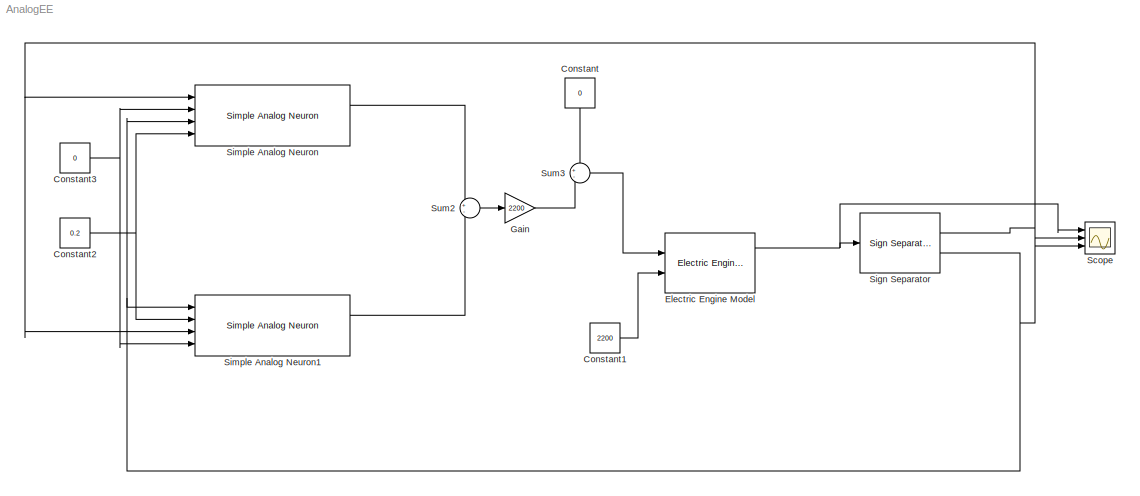
MODEL AnalogEE
KIND model
BLOCK [Constant] Constant
  SID = 7
  Value = 0
BLOCK [Constant] Constant1
  SID = 8
  Value = 2200
BLOCK [Constant] Constant2
  SID = 47
  Value = 0.2
BLOCK [Constant] Constant3
  SID = 62
  Value = 0
BLOCK [Reference] Electric Engine Model  REF=NeuroModelerLibrary/Support/Electric Engine Model
  Ports = [2, 3]
  SID = 92
  SourceBlock = NeuroModelerLibrary/Support/Electric Engine Model
  SourceType = SubSystem
BLOCK [Gain] Gain
  Gain = 2200
  SID = 9
BLOCK [Scope] Scope
  DataFormat = StructureWithTime
  Floating = off
  NumInputPorts = 3
  Ports = [3]
  SID = 12
  SampleTime = 0
  ShowLegends = off
  TimeRange = 3
  YMax = 0.2~0.2~0.1
  YMin = -0.2~0~0
BLOCK [Reference] Sign Separator  REF=NeuroModelerLibrary/Support/Sign Separator
  Ports = [1, 2]
  SID = 99
  SourceBlock = NeuroModelerLibrary/Support/Sign Separator
  SourceType = SubSystem
BLOCK [Reference] Simple Analog Neuron  REF=NeuroModelerLibrary/Analog Simple Cells/Simple Analog Neuron
  Ports = [4, 2]
  SID = 90
  SourceBlock = NeuroModelerLibrary/Analog Simple Cells/Simple Analog Neuron
  SourceType = SubSystem
BLOCK [Reference] Simple Analog Neuron1  REF=NeuroModelerLibrary/Analog Simple Cells/Simple Analog Neuron
  Ports = [4, 2]
  SID = 91
  SourceBlock = NeuroModelerLibrary/Analog Simple Cells/Simple Analog Neuron
  SourceType = SubSystem
BLOCK [Sum] Sum2
  IconShape = round
  Inputs = +-
  Ports = [2, 1]
  SID = 19
BLOCK [Sum] Sum3
  IconShape = round
  Inputs = +-
  Ports = [2, 1]
  SID = 20
LINE Constant1:1 -> Electric Engine Model:2
NET Constant2:1 -> Simple Analog Neuron1:2, Simple Analog Neuron:4
NET Constant3:1 -> Simple Analog Neuron1:4, Simple Analog Neuron:2
LINE Constant:1 -> Sum3:1
NET Electric Engine Model:1 -> Scope:1, Sign Separator:1
LINE Gain:1 -> Sum3:2
NET Sign Separator:1 -> Scope:2, Simple Analog Neuron1:3, Simple Analog Neuron:1
NET Sign Separator:2 -> Scope:3, Simple Analog Neuron1:1, Simple Analog Neuron:3
LINE Simple Analog Neuron1:1 -> Sum2:2
LINE Simple Analog Neuron:1 -> Sum2:1
LINE Sum2:1 -> Gain:1
LINE Sum3:1 -> Electric Engine Model:1
note: NET lines group one-source signal fan-out (src -> all destinations, sorted); 1:1 wires keep LINE
